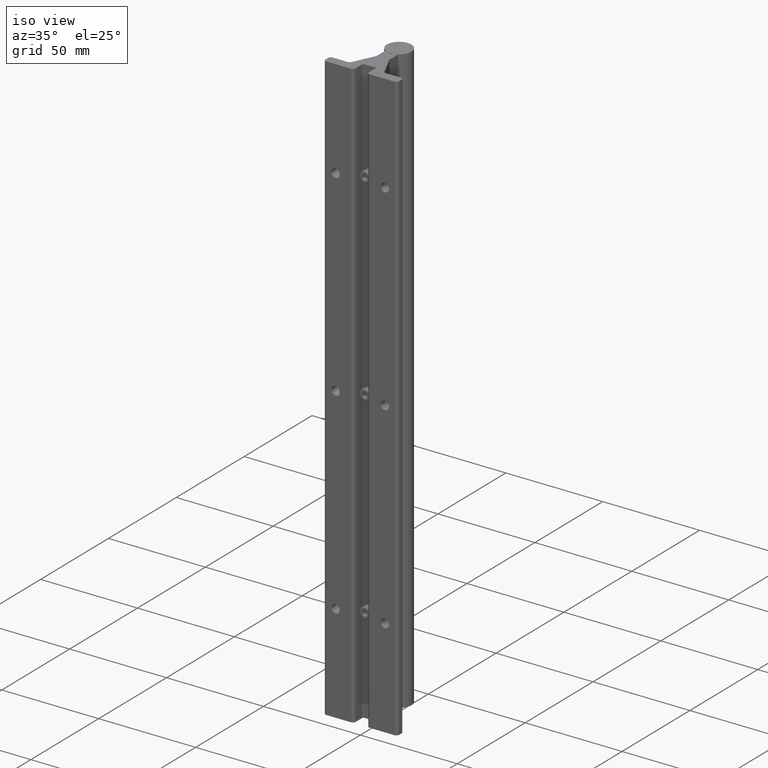
[diagram: clean part render]
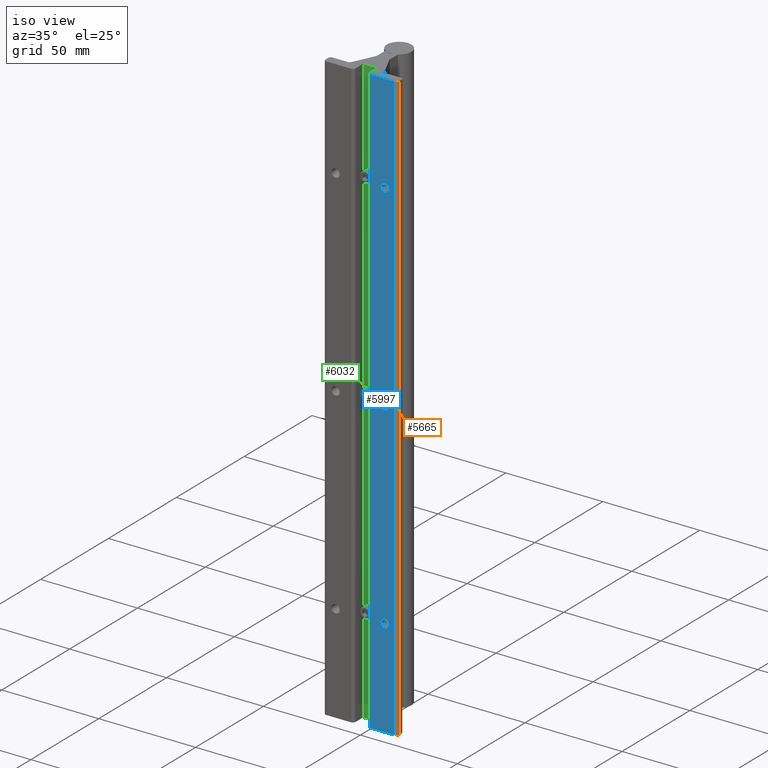
[diagram: same view with three faces highlighted in distinct colors, each labeled with its STEP entity id]
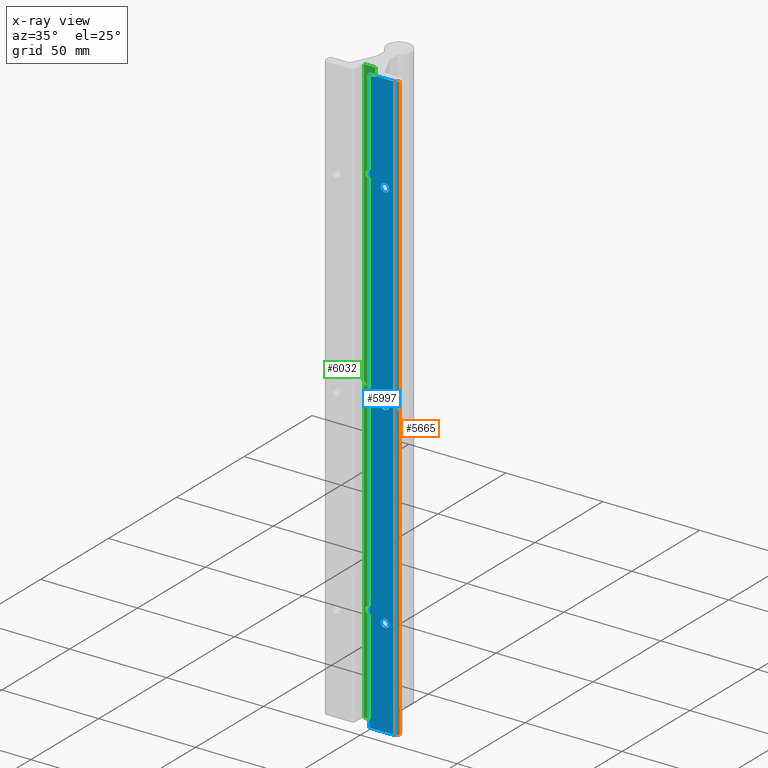
[diagram: x-ray of the same camera — body ghosted, the three highlighted faces saturated]
A machine part, iso view with three faces highlighted in distinct colors.
The next image is the same camera in x-ray (body ghosted, the three faces saturated) — at least one of them is partly hidden behind the body in this view.
Their STEP definitions:

[orange] entity #5665 — the highlighted cylindrical surface (edge-blend (fillet) strip) has radius 1.524 mm, axis along (0, 0, 1).
#299 = DIRECTION ( 'NONE',  ( 1.000000000000000000, 0.000000000000000000, 0.000000000000000000 ) ) ;
#430 = VERTEX_POINT ( 'NONE', #4446 ) ;
#476 = FACE_OUTER_BOUND ( 'NONE', #7375, .T. ) ;
#491 = CARTESIAN_POINT ( 'NONE',  ( 0.7500000000000003331, 0.06000000000000001166, 0.000000000000000000 ) ) ;
#511 = CARTESIAN_POINT ( 'NONE',  ( 0.6900000000000003908, 0.06000000000000001166, -13.75252057657289484 ) ) ;
#580 = VECTOR ( 'NONE', #6853, 39.37007874015748143 ) ;
#772 = LINE ( 'NONE', #3860, #580 ) ;
#1105 = DIRECTION ( 'NONE',  ( 1.000000000000000000, 0.000000000000000000, 0.000000000000000000 ) ) ;
#1162 = AXIS2_PLACEMENT_3D ( 'NONE', #6506, #5873, #5781 ) ;
#1240 = EDGE_CURVE ( 'NONE', #4486, #430, #772, .T. ) ;
#1259 = ORIENTED_EDGE ( 'NONE', *, *, #1240, .F. ) ;
#1375 = DIRECTION ( 'NONE',  ( 0.000000000000000000, 0.000000000000000000, 1.000000000000000000 ) ) ;
#1498 = CARTESIAN_POINT ( 'NONE',  ( 0.6900000000000003908, 0.06000000000000001166, -12.00000000000000178 ) ) ;
#1878 = VERTEX_POINT ( 'NONE', #5051 ) ;
#2383 = AXIS2_PLACEMENT_3D ( 'NONE', #1498, #3319, #299 ) ;
#2392 = EDGE_CURVE ( 'NONE', #1878, #3484, #2540, .T. ) ;
#2540 = LINE ( 'NONE', #5537, #5726 ) ;
#2746 = CIRCLE ( 'NONE', #2383, 0.05999999999999990757 ) ;
#2838 = EDGE_CURVE ( 'NONE', #430, #3484, #5441, .T. ) ;
#3316 = EDGE_CURVE ( 'NONE', #1878, #4486, #2746, .T. ) ;
#3319 = DIRECTION ( 'NONE',  ( -0.000000000000000000, -0.000000000000000000, -1.000000000000000000 ) ) ;
#3484 = VERTEX_POINT ( 'NONE', #491 ) ;
#3860 = CARTESIAN_POINT ( 'NONE',  ( 0.7105212085995404880, 0.003618442752845529766, -13.75252057657289484 ) ) ;
#3889 = ORIENTED_EDGE ( 'NONE', *, *, #2838, .F. ) ;
#4446 = CARTESIAN_POINT ( 'NONE',  ( 0.7105212085995404880, 0.003618442752845564027, 0.000000000000000000 ) ) ;
#4486 = VERTEX_POINT ( 'NONE', #4617 ) ;
#4617 = CARTESIAN_POINT ( 'NONE',  ( 0.7105212085995404880, 0.003618442752845549715, -12.00000000000000178 ) ) ;
#5051 = CARTESIAN_POINT ( 'NONE',  ( 0.7500000000000003331, 0.06000000000000001166, -12.00000000000000178 ) ) ;
#5273 = DIRECTION ( 'NONE',  ( 0.000000000000000000, 0.000000000000000000, 1.000000000000000000 ) ) ;
#5393 = CYLINDRICAL_SURFACE ( 'NONE', #7637, 0.05999999999999990757 ) ;
#5441 = CIRCLE ( 'NONE', #1162, 0.05999999999999990757 ) ;
#5537 = CARTESIAN_POINT ( 'NONE',  ( 0.7500000000000003331, 0.06000000000000001166, -13.75252057657289484 ) ) ;
#5665 = ADVANCED_FACE ( 'NONE', ( #476 ), #5393, .T. ) ;
#5726 = VECTOR ( 'NONE', #1375, 39.37007874015748143 ) ;
#5781 = DIRECTION ( 'NONE',  ( 1.000000000000000000, 0.000000000000000000, 0.000000000000000000 ) ) ;
#5873 = DIRECTION ( 'NONE',  ( 0.000000000000000000, 0.000000000000000000, 1.000000000000000000 ) ) ;
#6248 = ORIENTED_EDGE ( 'NONE', *, *, #3316, .F. ) ;
#6506 = CARTESIAN_POINT ( 'NONE',  ( 0.6900000000000003908, 0.06000000000000001166, 0.000000000000000000 ) ) ;
#6853 = DIRECTION ( 'NONE',  ( 0.000000000000000000, 0.000000000000000000, 1.000000000000000000 ) ) ;
#7375 = EDGE_LOOP ( 'NONE', ( #6248, #7398, #3889, #1259 ) ) ;
#7398 = ORIENTED_EDGE ( 'NONE', *, *, #2392, .T. ) ;
#7637 = AXIS2_PLACEMENT_3D ( 'NONE', #511, #5273, #1105 ) ;

[blue] entity #5997 — the highlighted planar face has unit normal (0, 1, 0).
#126 = VERTEX_POINT ( 'NONE', #716 ) ;
#348 = DIRECTION ( 'NONE',  ( 0.000000000000000000, 0.000000000000000000, 1.000000000000000000 ) ) ;
#460 = AXIS2_PLACEMENT_3D ( 'NONE', #5266, #7761, #4016 ) ;
#488 = EDGE_CURVE ( 'NONE', #6105, #2046, #3783, .T. ) ;
#588 = CIRCLE ( 'NONE', #2127, 0.08500000000000086653 ) ;
#657 = CARTESIAN_POINT ( 'NONE',  ( 0.7005796188425085225, 0.000000000000000000, 0.000000000000000000 ) ) ;
#715 = CIRCLE ( 'NONE', #3373, 0.08499999999999977018 ) ;
#716 = CARTESIAN_POINT ( 'NONE',  ( 0.5000000000000000000, 0.000000000000000000, -6.084999999999999076 ) ) ;
#825 = CIRCLE ( 'NONE', #6617, 0.08500000000000086653 ) ;
#842 = EDGE_CURVE ( 'NONE', #126, #7238, #935, .T. ) ;
#846 = VERTEX_POINT ( 'NONE', #7186 ) ;
#935 = CIRCLE ( 'NONE', #7743, 0.08499999999999977018 ) ;
#1066 = LINE ( 'NONE', #5243, #4259 ) ;
#1124 = LINE ( 'NONE', #2892, #6644 ) ;
#1249 = DIRECTION ( 'NONE',  ( 0.000000000000000000, 1.000000000000000000, 0.000000000000000000 ) ) ;
#1327 = CARTESIAN_POINT ( 'NONE',  ( 0.5000000000000000000, 0.000000000000000000, -2.000000000000000000 ) ) ;
#1433 = EDGE_CURVE ( 'NONE', #3840, #3566, #588, .T. ) ;
#1482 = CARTESIAN_POINT ( 'NONE',  ( 0.5000000000000000000, 0.000000000000000000, -10.00000000000000000 ) ) ;
#1582 = EDGE_CURVE ( 'NONE', #2752, #3524, #4503, .T. ) ;
#1695 = PLANE ( 'NONE',  #460 ) ;
#1707 = VECTOR ( 'NONE', #7410, 39.37007874015748143 ) ;
#1858 = DIRECTION ( 'NONE',  ( -1.000000000000000000, 0.000000000000000000, 0.000000000000000000 ) ) ;
#1965 = ORIENTED_EDGE ( 'NONE', *, *, #1582, .T. ) ;
#2046 = VERTEX_POINT ( 'NONE', #657 ) ;
#2127 = AXIS2_PLACEMENT_3D ( 'NONE', #1482, #2685, #7507 ) ;
#2174 = DIRECTION ( 'NONE',  ( 0.000000000000000000, 1.000000000000000000, 0.000000000000000000 ) ) ;
#2249 = CARTESIAN_POINT ( 'NONE',  ( 0.5000000000000000000, 0.000000000000000000, -10.00000000000000000 ) ) ;
#2255 = EDGE_CURVE ( 'NONE', #7238, #126, #715, .T. ) ;
#2258 = CARTESIAN_POINT ( 'NONE',  ( 0.5000000000000000000, 0.000000000000000000, -2.084999999999999964 ) ) ;
#2287 = DIRECTION ( 'NONE',  ( 0.000000000000000000, 0.000000000000000000, 1.000000000000000000 ) ) ;
#2368 = DIRECTION ( 'NONE',  ( 0.000000000000000000, 0.000000000000000000, 1.000000000000000000 ) ) ;
#2426 = DIRECTION ( 'NONE',  ( 0.000000000000000000, 0.000000000000000000, 1.000000000000000000 ) ) ;
#2591 = ORIENTED_EDGE ( 'NONE', *, *, #5175, .T. ) ;
#2658 = CARTESIAN_POINT ( 'NONE',  ( 0.7005796188425083004, 0.000000000000000000, -13.75252057657289484 ) ) ;
#2685 = DIRECTION ( 'NONE',  ( 0.000000000000000000, 1.000000000000000000, 0.000000000000000000 ) ) ;
#2752 = VERTEX_POINT ( 'NONE', #6894 ) ;
#2801 = DIRECTION ( 'NONE',  ( 0.000000000000000000, 0.000000000000000000, 1.000000000000000000 ) ) ;
#2892 = CARTESIAN_POINT ( 'NONE',  ( 0.1844203811574915142, 0.000000000000000000, -12.00000000000000178 ) ) ;
#2894 = FACE_BOUND ( 'NONE', #5155, .T. ) ;
#3155 = CARTESIAN_POINT ( 'NONE',  ( 0.5000000000000000000, 0.000000000000000000, -9.914999999999999147 ) ) ;
#3373 = AXIS2_PLACEMENT_3D ( 'NONE', #6907, #4497, #348 ) ;
#3428 = FACE_BOUND ( 'NONE', #7453, .T. ) ;
#3524 = VERTEX_POINT ( 'NONE', #2258 ) ;
#3566 = VERTEX_POINT ( 'NONE', #3155 ) ;
#3783 = LINE ( 'NONE', #2658, #1707 ) ;
#3840 = VERTEX_POINT ( 'NONE', #4554 ) ;
#3979 = VERTEX_POINT ( 'NONE', #6168 ) ;
#4016 = DIRECTION ( 'NONE',  ( 0.000000000000000000, -0.000000000000000000, 1.000000000000000000 ) ) ;
#4063 = ORIENTED_EDGE ( 'NONE', *, *, #2255, .T. ) ;
#4087 = FACE_BOUND ( 'NONE', #7457, .T. ) ;
#4228 = CIRCLE ( 'NONE', #7250, 0.08500000000000004774 ) ;
#4259 = VECTOR ( 'NONE', #2287, 39.37007874015748143 ) ;
#4497 = DIRECTION ( 'NONE',  ( 0.000000000000000000, 1.000000000000000000, 0.000000000000000000 ) ) ;
#4503 = CIRCLE ( 'NONE', #7517, 0.08500000000000004774 ) ;
#4554 = CARTESIAN_POINT ( 'NONE',  ( 0.5000000000000000000, 0.000000000000000000, -10.08500000000000085 ) ) ;
#4664 = CARTESIAN_POINT ( 'NONE',  ( 0.5000000000000000000, 0.000000000000000000, -5.999999999999999112 ) ) ;
#4705 = ORIENTED_EDGE ( 'NONE', *, *, #6528, .T. ) ;
#5155 = EDGE_LOOP ( 'NONE', ( #2591, #1965 ) ) ;
#5175 = EDGE_CURVE ( 'NONE', #3524, #2752, #4228, .T. ) ;
#5205 = DIRECTION ( 'NONE',  ( 0.000000000000000000, 1.000000000000000000, 0.000000000000000000 ) ) ;
#5214 = ORIENTED_EDGE ( 'NONE', *, *, #5826, .F. ) ;
#5238 = ORIENTED_EDGE ( 'NONE', *, *, #1433, .T. ) ;
#5243 = CARTESIAN_POINT ( 'NONE',  ( 0.1844203811574915142, 0.000000000000000000, -13.75252057657289484 ) ) ;
#5248 = DIRECTION ( 'NONE',  ( 0.000000000000000000, 0.000000000000000000, 1.000000000000000000 ) ) ;
#5266 = CARTESIAN_POINT ( 'NONE',  ( -2.500000000000000000, 0.000000000000000000, 0.1250000000000000000 ) ) ;
#5336 = FACE_OUTER_BOUND ( 'NONE', #6582, .T. ) ;
#5374 = ORIENTED_EDGE ( 'NONE', *, *, #7326, .F. ) ;
#5826 = EDGE_CURVE ( 'NONE', #3979, #2046, #6660, .T. ) ;
#5834 = ORIENTED_EDGE ( 'NONE', *, *, #7596, .F. ) ;
#5976 = VECTOR ( 'NONE', #6615, 39.37007874015748143 ) ;
#5997 = ADVANCED_FACE ( 'NONE', ( #3428, #4087, #2894, #5336 ), #1695, .F. ) ;
#6033 = CARTESIAN_POINT ( 'NONE',  ( 0.5000000000000000000, 0.000000000000000000, -5.915000000000000036 ) ) ;
#6105 = VERTEX_POINT ( 'NONE', #6276 ) ;
#6129 = CARTESIAN_POINT ( 'NONE',  ( -2.500000000000000000, 0.000000000000000000, 0.000000000000000000 ) ) ;
#6168 = CARTESIAN_POINT ( 'NONE',  ( 0.1844203811574868512, 7.854062981784756507E-16, 0.000000000000000000 ) ) ;
#6214 = ORIENTED_EDGE ( 'NONE', *, *, #488, .T. ) ;
#6276 = CARTESIAN_POINT ( 'NONE',  ( 0.7005796188425085225, 0.000000000000000000, -12.00000000000000178 ) ) ;
#6528 = EDGE_CURVE ( 'NONE', #3566, #3840, #825, .T. ) ;
#6582 = EDGE_LOOP ( 'NONE', ( #5214, #5374, #5834, #6214 ) ) ;
#6615 = DIRECTION ( 'NONE',  ( 1.000000000000000000, 0.000000000000000000, 0.000000000000000000 ) ) ;
#6617 = AXIS2_PLACEMENT_3D ( 'NONE', #2249, #5205, #5248 ) ;
#6644 = VECTOR ( 'NONE', #1858, 39.37007874015748143 ) ;
#6660 = LINE ( 'NONE', #6129, #5976 ) ;
#6894 = CARTESIAN_POINT ( 'NONE',  ( 0.5000000000000000000, 0.000000000000000000, -1.915000000000000036 ) ) ;
#6907 = CARTESIAN_POINT ( 'NONE',  ( 0.5000000000000000000, 0.000000000000000000, -5.999999999999999112 ) ) ;
#6999 = ORIENTED_EDGE ( 'NONE', *, *, #842, .T. ) ;
#7071 = DIRECTION ( 'NONE',  ( 0.000000000000000000, 1.000000000000000000, 0.000000000000000000 ) ) ;
#7186 = CARTESIAN_POINT ( 'NONE',  ( 0.1844203811574915142, 3.734948428837859484E-18, -12.00000000000000178 ) ) ;
#7238 = VERTEX_POINT ( 'NONE', #6033 ) ;
#7250 = AXIS2_PLACEMENT_3D ( 'NONE', #1327, #1249, #2426 ) ;
#7326 = EDGE_CURVE ( 'NONE', #846, #3979, #1066, .T. ) ;
#7410 = DIRECTION ( 'NONE',  ( 0.000000000000000000, 0.000000000000000000, 1.000000000000000000 ) ) ;
#7453 = EDGE_LOOP ( 'NONE', ( #6999, #4063 ) ) ;
#7457 = EDGE_LOOP ( 'NONE', ( #5238, #4705 ) ) ;
#7507 = DIRECTION ( 'NONE',  ( 0.000000000000000000, 0.000000000000000000, 1.000000000000000000 ) ) ;
#7517 = AXIS2_PLACEMENT_3D ( 'NONE', #7624, #2174, #2801 ) ;
#7596 = EDGE_CURVE ( 'NONE', #6105, #846, #1124, .T. ) ;
#7624 = CARTESIAN_POINT ( 'NONE',  ( 0.5000000000000000000, 0.000000000000000000, -2.000000000000000000 ) ) ;
#7743 = AXIS2_PLACEMENT_3D ( 'NONE', #4664, #7071, #2368 ) ;
#7761 = DIRECTION ( 'NONE',  ( 0.000000000000000000, 1.000000000000000000, 0.000000000000000000 ) ) ;

[green] entity #6032 — the highlighted planar face has unit normal (-0, -1, 0).
#162 = VECTOR ( 'NONE', #4217, 39.37007874015748143 ) ;
#220 = DIRECTION ( 'NONE',  ( 1.038671372591101881E-14, 1.000000000000000000, -0.000000000000000000 ) ) ;
#388 = EDGE_CURVE ( 'NONE', #1768, #7422, #3010, .T. ) ;
#431 = VERTEX_POINT ( 'NONE', #5143 ) ;
#499 = DIRECTION ( 'NONE',  ( 1.038671372591101881E-14, 1.000000000000000000, -0.000000000000000000 ) ) ;
#533 = CIRCLE ( 'NONE', #3441, 0.08499999999999999223 ) ;
#595 = VECTOR ( 'NONE', #5438, 39.37007874015748143 ) ;
#640 = VERTEX_POINT ( 'NONE', #2887 ) ;
#676 = CARTESIAN_POINT ( 'NONE',  ( 1.040949779276161736E-17, 0.2700000000000010725, -9.914999999999999147 ) ) ;
#703 = DIRECTION ( 'NONE',  ( 1.038671372591101881E-14, 1.000000000000000000, -0.000000000000000000 ) ) ;
#954 = ORIENTED_EDGE ( 'NONE', *, *, #388, .F. ) ;
#967 = VERTEX_POINT ( 'NONE', #676 ) ;
#1075 = DIRECTION ( 'NONE',  ( 1.038671372591101881E-14, 1.000000000000000000, -0.000000000000000000 ) ) ;
#1233 = CARTESIAN_POINT ( 'NONE',  ( -0.1199999999999977612, 0.2700000000000022937, 0.000000000000000000 ) ) ;
#1283 = FACE_BOUND ( 'NONE', #2090, .T. ) ;
#1329 = FACE_BOUND ( 'NONE', #7608, .T. ) ;
#1372 = CARTESIAN_POINT ( 'NONE',  ( -0.1199999999999977612, 0.2700000000000022937, -13.75252057657289484 ) ) ;
#1539 = ORIENTED_EDGE ( 'NONE', *, *, #2039, .T. ) ;
#1671 = CIRCLE ( 'NONE', #6973, 0.08499999999999999223 ) ;
#1766 = CARTESIAN_POINT ( 'NONE',  ( -0.1199999999999977612, 0.2700000000000024047, -12.00000000000000178 ) ) ;
#1768 = VERTEX_POINT ( 'NONE', #1766 ) ;
#1825 = ORIENTED_EDGE ( 'NONE', *, *, #7147, .T. ) ;
#1839 = DIRECTION ( 'NONE',  ( 1.000000000000000000, -1.044530115224571437E-14, 0.000000000000000000 ) ) ;
#2039 = EDGE_CURVE ( 'NONE', #5257, #431, #5617, .T. ) ;
#2090 = EDGE_LOOP ( 'NONE', ( #1825, #2904 ) ) ;
#2253 = AXIS2_PLACEMENT_3D ( 'NONE', #1372, #6733, #5385 ) ;
#2498 = DIRECTION ( 'NONE',  ( 1.038671372591101881E-14, 1.000000000000000000, -0.000000000000000000 ) ) ;
#2502 = AXIS2_PLACEMENT_3D ( 'NONE', #4213, #703, #6044 ) ;
#2609 = AXIS2_PLACEMENT_3D ( 'NONE', #6539, #2774, #1839 ) ;
#2610 = EDGE_CURVE ( 'NONE', #431, #5257, #1671, .T. ) ;
#2632 = EDGE_CURVE ( 'NONE', #6410, #967, #533, .T. ) ;
#2774 = DIRECTION ( 'NONE',  ( 1.038671372591101881E-14, 1.000000000000000000, -0.000000000000000000 ) ) ;
#2800 = VERTEX_POINT ( 'NONE', #7116 ) ;
#2887 = CARTESIAN_POINT ( 'NONE',  ( 9.221849992190897077E-30, 0.2700000000000010725, -2.084999999999999964 ) ) ;
#2904 = ORIENTED_EDGE ( 'NONE', *, *, #6013, .T. ) ;
#2996 = ORIENTED_EDGE ( 'NONE', *, *, #5377, .T. ) ;
#3010 = LINE ( 'NONE', #3084, #162 ) ;
#3057 = VERTEX_POINT ( 'NONE', #4692 ) ;
#3062 = LINE ( 'NONE', #1233, #595 ) ;
#3084 = CARTESIAN_POINT ( 'NONE',  ( -0.1199999999999977612, 0.2700000000000024047, -13.75252057657289484 ) ) ;
#3278 = CARTESIAN_POINT ( 'NONE',  ( 1.040949779276175295E-17, 0.2700000000000010725, -5.915000000000000036 ) ) ;
#3441 = AXIS2_PLACEMENT_3D ( 'NONE', #5917, #499, #4685 ) ;
#3461 = ORIENTED_EDGE ( 'NONE', *, *, #5628, .F. ) ;
#3500 = DIRECTION ( 'NONE',  ( 1.000000000000000000, -1.044530115224571437E-14, 0.000000000000000000 ) ) ;
#3658 = LINE ( 'NONE', #6035, #3819 ) ;
#3748 = FACE_BOUND ( 'NONE', #5643, .T. ) ;
#3751 = CIRCLE ( 'NONE', #7515, 0.08499999999999999223 ) ;
#3782 = FACE_OUTER_BOUND ( 'NONE', #5195, .T. ) ;
#3819 = VECTOR ( 'NONE', #7283, 39.37007874015748143 ) ;
#4060 = CARTESIAN_POINT ( 'NONE',  ( -0.1199999999999977612, 0.2700000000000022937, -12.00000000000000178 ) ) ;
#4178 = DIRECTION ( 'NONE',  ( -1.000000000000000000, 1.038671372591101881E-14, 0.000000000000000000 ) ) ;
#4213 = CARTESIAN_POINT ( 'NONE',  ( 0.000000000000000000, 0.2700000000000010725, -2.000000000000000000 ) ) ;
#4217 = DIRECTION ( 'NONE',  ( 0.000000000000000000, 0.000000000000000000, 1.000000000000000000 ) ) ;
#4379 = EDGE_CURVE ( 'NONE', #4390, #3057, #3658, .T. ) ;
#4390 = VERTEX_POINT ( 'NONE', #4399 ) ;
#4399 = CARTESIAN_POINT ( 'NONE',  ( 0.1200000000000018552, 0.2699999999999997957, -12.00000000000000178 ) ) ;
#4675 = CARTESIAN_POINT ( 'NONE',  ( 0.000000000000000000, 0.2700000000000010725, -2.000000000000000000 ) ) ;
#4685 = DIRECTION ( 'NONE',  ( 1.000000000000000000, -1.044530115224571437E-14, 0.000000000000000000 ) ) ;
#4692 = CARTESIAN_POINT ( 'NONE',  ( 0.1200000000000018552, 0.2699999999999998512, 0.000000000000000000 ) ) ;
#4881 = CIRCLE ( 'NONE', #2502, 0.08499999999999999223 ) ;
#4893 = CARTESIAN_POINT ( 'NONE',  ( 0.000000000000000000, 0.2700000000000010725, -5.999999999999999112 ) ) ;
#4959 = PLANE ( 'NONE',  #2253 ) ;
#5050 = ORIENTED_EDGE ( 'NONE', *, *, #4379, .T. ) ;
#5110 = CARTESIAN_POINT ( 'NONE',  ( 0.000000000000000000, 0.2700000000000010725, -5.999999999999999112 ) ) ;
#5143 = CARTESIAN_POINT ( 'NONE',  ( 9.221849992190926504E-30, 0.2700000000000010725, -6.084999999999999076 ) ) ;
#5195 = EDGE_LOOP ( 'NONE', ( #3461, #5050, #7339, #954 ) ) ;
#5257 = VERTEX_POINT ( 'NONE', #3278 ) ;
#5377 = EDGE_CURVE ( 'NONE', #967, #6410, #6878, .T. ) ;
#5385 = DIRECTION ( 'NONE',  ( 1.000000000000000000, -1.038671372591101881E-14, 0.000000000000000000 ) ) ;
#5438 = DIRECTION ( 'NONE',  ( 1.000000000000000000, -1.038671372591101723E-14, 0.000000000000000000 ) ) ;
#5465 = CARTESIAN_POINT ( 'NONE',  ( -0.1199999999999977612, 0.2700000000000024047, 0.000000000000000000 ) ) ;
#5468 = ORIENTED_EDGE ( 'NONE', *, *, #2632, .T. ) ;
#5617 = CIRCLE ( 'NONE', #6118, 0.08499999999999999223 ) ;
#5628 = EDGE_CURVE ( 'NONE', #4390, #1768, #7101, .T. ) ;
#5643 = EDGE_LOOP ( 'NONE', ( #7567, #1539 ) ) ;
#5917 = CARTESIAN_POINT ( 'NONE',  ( 0.000000000000000000, 0.2700000000000010725, -10.00000000000000000 ) ) ;
#6013 = EDGE_CURVE ( 'NONE', #2800, #640, #4881, .T. ) ;
#6032 = ADVANCED_FACE ( 'NONE', ( #3748, #1329, #1283, #3782 ), #4959, .T. ) ;
#6035 = CARTESIAN_POINT ( 'NONE',  ( 0.1200000000000018552, 0.2699999999999997957, -13.75252057657289484 ) ) ;
#6044 = DIRECTION ( 'NONE',  ( 1.000000000000000000, -1.044530115224571437E-14, 0.000000000000000000 ) ) ;
#6118 = AXIS2_PLACEMENT_3D ( 'NONE', #4893, #2498, #7293 ) ;
#6148 = CARTESIAN_POINT ( 'NONE',  ( 9.221849992190807394E-30, 0.2700000000000010725, -10.08500000000000085 ) ) ;
#6410 = VERTEX_POINT ( 'NONE', #6148 ) ;
#6539 = CARTESIAN_POINT ( 'NONE',  ( 0.000000000000000000, 0.2700000000000010725, -10.00000000000000000 ) ) ;
#6683 = EDGE_CURVE ( 'NONE', #7422, #3057, #3062, .T. ) ;
#6733 = DIRECTION ( 'NONE',  ( -1.038671372591101881E-14, -1.000000000000000000, 0.000000000000000000 ) ) ;
#6878 = CIRCLE ( 'NONE', #2609, 0.08499999999999999223 ) ;
#6884 = VECTOR ( 'NONE', #4178, 39.37007874015748143 ) ;
#6973 = AXIS2_PLACEMENT_3D ( 'NONE', #5110, #220, #7556 ) ;
#7101 = LINE ( 'NONE', #4060, #6884 ) ;
#7116 = CARTESIAN_POINT ( 'NONE',  ( 1.040949779276171751E-17, 0.2700000000000010725, -1.915000000000000036 ) ) ;
#7147 = EDGE_CURVE ( 'NONE', #640, #2800, #3751, .T. ) ;
#7283 = DIRECTION ( 'NONE',  ( 0.000000000000000000, 0.000000000000000000, 1.000000000000000000 ) ) ;
#7293 = DIRECTION ( 'NONE',  ( 1.000000000000000000, -1.044530115224571437E-14, 0.000000000000000000 ) ) ;
#7339 = ORIENTED_EDGE ( 'NONE', *, *, #6683, .F. ) ;
#7422 = VERTEX_POINT ( 'NONE', #5465 ) ;
#7515 = AXIS2_PLACEMENT_3D ( 'NONE', #4675, #1075, #3500 ) ;
#7556 = DIRECTION ( 'NONE',  ( 1.000000000000000000, -1.044530115224571437E-14, 0.000000000000000000 ) ) ;
#7567 = ORIENTED_EDGE ( 'NONE', *, *, #2610, .T. ) ;
#7608 = EDGE_LOOP ( 'NONE', ( #5468, #2996 ) ) ;